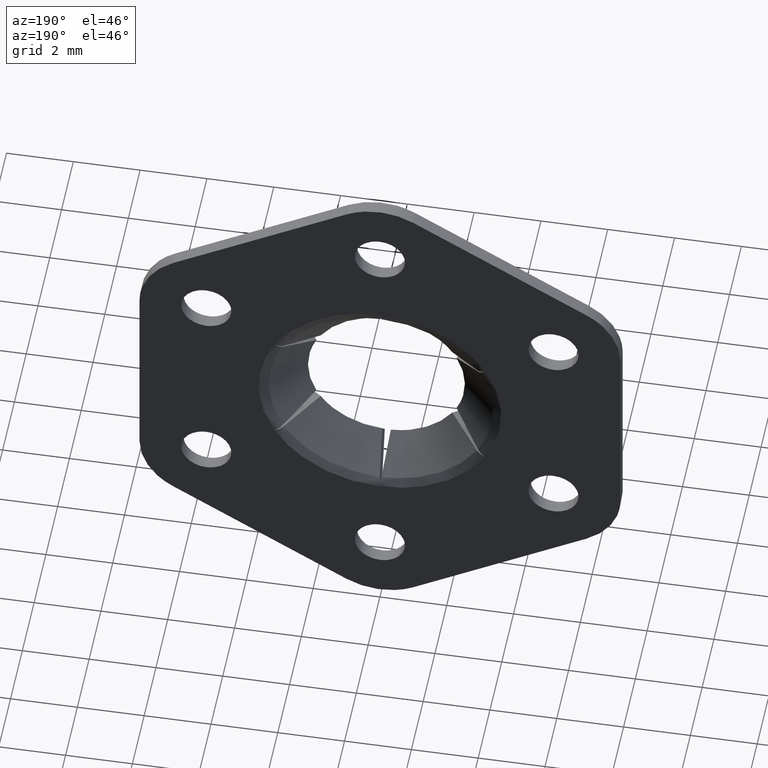
[diagram: clean part render]
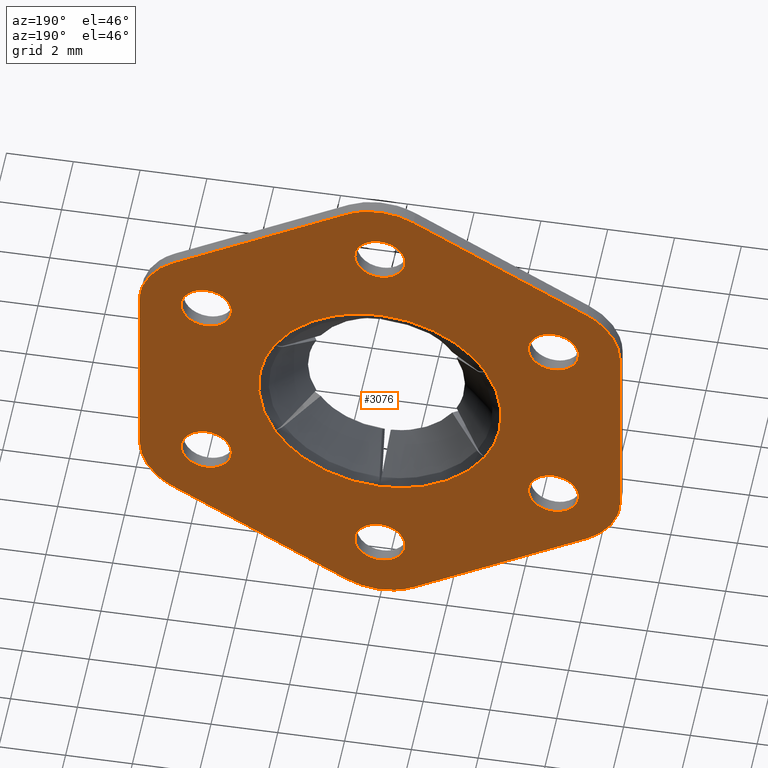
[diagram: same view with one face highlighted and labeled with its STEP entity id]
A machine part, auxiliary view. The second image highlights one B-rep face of the part: STEP entity #3076.
In plain terms, the highlighted face is a freeform B-spline surface patch.
Its self-contained STEP definition (entity closure, byte-faithful):
#23=CARTESIAN_POINT('',(5.946152422706778,0.0,3.000000184233894));
#24=VERTEX_POINT('',#23);
#25=CARTESIAN_POINT('',(5.749110466918721,5.160690E-013,3.506692678224320));
#26=VERTEX_POINT('',#25);
#27=CARTESIAN_POINT('',(5.946152422706778,0.0,3.000000184233894));
#28=CARTESIAN_POINT('',(5.946184937476048,7.378337E-014,3.072442990569414));
#29=CARTESIAN_POINT('',(5.930916651273621,1.800028E-013,3.176732478894167));
#30=CARTESIAN_POINT('',(5.866589797695497,3.575634E-013,3.351067039501909));
#31=CARTESIAN_POINT('',(5.803968080341062,4.551761E-013,3.446906151448388));
#32=CARTESIAN_POINT('',(5.749110466918721,5.160690E-013,3.506692678224320));
#33=B_SPLINE_CURVE_WITH_KNOTS('',3,(#27,#28,#29,#30,#31,#32),.UNSPECIFIED.,.F.,.U.,(4,1,1,4),(5.068699E-009,0.217315538291220,0.312931662552563,0.556326633973435),.UNSPECIFIED.);
#34=EDGE_CURVE('',#24,#26,#33,.T.);
#36=CARTESIAN_POINT('',(5.196152422706800,0.0,2.250000000000000));
#37=VERTEX_POINT('',#36);
#38=CARTESIAN_POINT('',(5.196152422706800,0.0,2.250000000000000));
#39=CARTESIAN_POINT('',(5.257512701088277,0.0,2.249986136258823));
#40=CARTESIAN_POINT('',(5.377157077385261,0.0,2.264763965353576));
#41=CARTESIAN_POINT('',(5.527368480661822,0.0,2.321648528397911));
#42=CARTESIAN_POINT('',(5.663105217703162,0.0,2.406443446935928));
#43=CARTESIAN_POINT('',(5.779524304997474,0.0,2.517271084060655));
#44=CARTESIAN_POINT('',(5.867947849651195,0.0,2.655046133223230));
#45=CARTESIAN_POINT('',(5.930003618018592,0.0,2.815938318747755));
#46=CARTESIAN_POINT('',(5.946181989519886,0.0,2.929432932191865));
#47=CARTESIAN_POINT('',(5.946152422706778,0.0,3.000000184233894));
#48=B_SPLINE_CURVE_WITH_KNOTS('',3,(#38,#39,#40,#41,#42,#43,#44,#45,#46,#47),.UNSPECIFIED.,.F.,.U.,(4,1,1,1,1,1,1,4),(0.000000021674146,0.184078384052444,0.358955458121702,0.478609710542557,0.662682977999263,0.837557633772477,0.966414686754357,1.178104740995845),.UNSPECIFIED.);
#49=EDGE_CURVE('',#37,#24,#48,.T.);
#51=CARTESIAN_POINT('',(4.643194378494880,5.161626E-013,2.493307321775680));
#52=VERTEX_POINT('',#51);
#53=CARTESIAN_POINT('',(4.643194378494880,5.161626E-013,2.493307321775680));
#54=CARTESIAN_POINT('',(4.678195580507922,4.834905E-013,2.455101614962663));
#55=CARTESIAN_POINT('',(4.758590510760346,4.084453E-013,2.383824211127593));
#56=CARTESIAN_POINT('',(4.889266781401227,2.864646E-013,2.310442431983348));
#57=CARTESIAN_POINT('',(5.037474597793182,1.481189E-013,2.261766622327099));
#58=CARTESIAN_POINT('',(5.137860098112325,5.441339E-014,2.249986600527982));
#59=CARTESIAN_POINT('',(5.196152422706800,0.0,2.250000000000000));
#60=B_SPLINE_CURVE_WITH_KNOTS('',3,(#53,#54,#55,#56,#57,#58,#59),.UNSPECIFIED.,.F.,.U.,(4,1,1,1,4),(6.064144E-009,0.155444635827877,0.320601059936478,0.446902636496981,0.621777923410379),.UNSPECIFIED.);
#61=EDGE_CURVE('',#52,#37,#60,.T.);
#134=CARTESIAN_POINT('',(5.196152422706800,0.0,3.750000000000000));
#135=VERTEX_POINT('',#134);
#136=CARTESIAN_POINT('',(5.749110466918721,5.160690E-013,3.506692678224320));
#137=CARTESIAN_POINT('',(5.720670224433375,4.895260E-013,3.537732583283170));
#138=CARTESIAN_POINT('',(5.651379371756149,4.248577E-013,3.601618785898039));
#139=CARTESIAN_POINT('',(5.524255142744260,3.062142E-013,3.680801797982876));
#140=CARTESIAN_POINT('',(5.367782529036679,1.601803E-013,3.736718433350071));
#141=CARTESIAN_POINT('',(5.254445086619060,5.440383E-014,3.750012565443822));
#142=CARTESIAN_POINT('',(5.196152422706800,0.0,3.750000000000000));
#143=B_SPLINE_CURVE_WITH_KNOTS('',3,(#136,#137,#138,#139,#140,#141,#142),.UNSPECIFIED.,.F.,.U.,(4,1,1,1,4),(6.064271E-009,0.126298254635363,0.281743373241774,0.446902636497098,0.621777923410379),.UNSPECIFIED.);
#144=EDGE_CURVE('',#26,#135,#143,.T.);
#183=CARTESIAN_POINT('',(4.446152422706823,0.0,2.999999815766107));
#184=VERTEX_POINT('',#183);
#185=CARTESIAN_POINT('',(4.446152422706823,0.0,2.999999815766107));
#186=CARTESIAN_POINT('',(4.446144805373542,5.313057E-014,2.947844033765445));
#187=CARTESIAN_POINT('',(4.456169685472565,1.505302E-013,2.852231398013865));
#188=CARTESIAN_POINT('',(4.510366550922099,3.319426E-013,2.674147442789831));
#189=CARTESIAN_POINT('',(4.582445133115582,4.487422E-013,2.559490765430094));
#190=CARTESIAN_POINT('',(4.643194378494880,5.161626E-013,2.493307321775680));
#191=B_SPLINE_CURVE_WITH_KNOTS('',3,(#185,#186,#187,#188,#189,#190),.UNSPECIFIED.,.F.,.U.,(4,1,1,4),(5.068143E-009,0.156467114270960,0.286852527127394,0.556326633973444),.UNSPECIFIED.);
#192=EDGE_CURVE('',#184,#52,#191,.T.);
#194=CARTESIAN_POINT('',(5.196152422706800,0.0,3.750000000000000));
#195=CARTESIAN_POINT('',(5.128656355356434,0.0,3.750018199858913));
#196=CARTESIAN_POINT('',(4.996743263281747,0.0,3.732076475234925));
#197=CARTESIAN_POINT('',(4.834250795388133,0.0,3.663600345843067));
#198=CARTESIAN_POINT('',(4.708379430647211,0.0,3.574930056110721));
#199=CARTESIAN_POINT('',(4.604443580825255,0.0,3.469724865972024));
#200=CARTESIAN_POINT('',(4.524356371428204,0.0,3.344954659015762));
#201=CARTESIAN_POINT('',(4.462301034143320,0.0,3.184061785287191));
#202=CARTESIAN_POINT('',(4.446122892455615,0.0,3.070567061633116));
#203=CARTESIAN_POINT('',(4.446152422706823,0.0,2.999999815766107));
#204=B_SPLINE_CURVE_WITH_KNOTS('',3,(#194,#195,#196,#197,#198,#199,#200,#201,#202,#203),.UNSPECIFIED.,.F.,.U.,(4,1,1,1,1,1,1,4),(0.000000021670163,0.202485020717003,0.395769922742663,0.524630130745509,0.662682977997986,0.837557633771717,0.966414686753920,1.178104740995864),.UNSPECIFIED.);
#205=EDGE_CURVE('',#135,#184,#204,.T.);
#228=CARTESIAN_POINT('',(0.749999999999977,0.0,6.000000184233893));
#229=VERTEX_POINT('',#228);
#230=CARTESIAN_POINT('',(0.552958044211920,5.161626E-013,6.506692678224320));
#231=VERTEX_POINT('',#230);
#232=CARTESIAN_POINT('',(0.749999999999977,0.0,6.000000184233893));
#233=CARTESIAN_POINT('',(0.750004440080265,4.722693E-014,6.046360634156927));
#234=CARTESIAN_POINT('',(0.740837376669749,1.475812E-013,6.144873718946134));
#235=CARTESIAN_POINT('',(0.687585999245365,3.296108E-013,6.323563610208330));
#236=CARTESIAN_POINT('',(0.611738728708460,4.509136E-013,6.442640838878737));
#237=CARTESIAN_POINT('',(0.552958044211920,5.161626E-013,6.506692678224320));
#238=B_SPLINE_CURVE_WITH_KNOTS('',3,(#232,#233,#234,#235,#236,#237),.UNSPECIFIED.,.F.,.U.,(4,1,1,4),(5.067829E-009,0.139081660163717,0.295547113058508,0.556326633973440),.UNSPECIFIED.);
#239=EDGE_CURVE('',#229,#231,#238,.T.);
#241=CARTESIAN_POINT('',(0.0,0.0,5.250000000000000));
#242=VERTEX_POINT('',#241);
#243=CARTESIAN_POINT('',(0.0,0.0,5.250000000000000));
#244=CARTESIAN_POINT('',(0.073634310839648,0.0,5.249969528322267));
#245=CARTESIAN_POINT('',(0.190196541582829,0.0,5.267311435908592));
#246=CARTESIAN_POINT('',(0.361751695392838,0.0,5.335916480188113));
#247=CARTESIAN_POINT('',(0.509832943869035,0.0,5.437489105223166));
#248=CARTESIAN_POINT('',(0.643387826729425,0.0,5.596213492509747));
#249=CARTESIAN_POINT('',(0.729943836064530,0.0,5.788321153477878));
#250=CARTESIAN_POINT('',(0.750023459295771,0.0,5.929435046275060));
#251=CARTESIAN_POINT('',(0.749999999999977,0.0,6.000000184233893));
#252=B_SPLINE_CURVE_WITH_KNOTS('',3,(#243,#244,#245,#246,#247,#248,#249,#250,#251),.UNSPECIFIED.,.F.,.U.,(4,1,1,1,1,1,4),(0.000000021670043,0.220892851253244,0.349750026871903,0.552242924751482,0.754722615408671,0.966414686753945,1.178104740995854),.UNSPECIFIED.);
#253=EDGE_CURVE('',#242,#229,#252,.T.);
#255=CARTESIAN_POINT('',(-0.552958044211920,5.160690E-013,5.493307321775680));
#256=VERTEX_POINT('',#255);
#257=CARTESIAN_POINT('',(-0.552958044211920,5.160690E-013,5.493307321775680));
#258=CARTESIAN_POINT('',(-0.517956269270599,4.834022E-013,5.455102882358943));
#259=CARTESIAN_POINT('',(-0.432691206268956,4.038254E-013,5.379498102064953));
#260=CARTESIAN_POINT('',(-0.303744878644939,2.834814E-013,5.309269066267119));
#261=CARTESIAN_POINT('',(-0.155436178956231,1.450667E-013,5.261627589991326));
#262=CARTESIAN_POINT('',(-0.061531884514044,5.742695E-014,5.249982522281780));
#263=CARTESIAN_POINT('',(0.0,0.0,5.250000000000000));
#264=B_SPLINE_CURVE_WITH_KNOTS('',3,(#257,#258,#259,#260,#261,#262,#263),.UNSPECIFIED.,.F.,.U.,(4,1,1,1,4),(6.064075E-009,0.155444635827873,0.340034546887906,0.437186885679846,0.621777923410382),.UNSPECIFIED.);
#265=EDGE_CURVE('',#256,#242,#264,.T.);
#337=CARTESIAN_POINT('',(0.0,0.0,6.750000000000000));
#338=VERTEX_POINT('',#337);
#339=CARTESIAN_POINT('',(0.552958044211920,5.161626E-013,6.506692678224320));
#340=CARTESIAN_POINT('',(0.517956778320681,4.834905E-013,6.544898325402840));
#341=CARTESIAN_POINT('',(0.437561972048355,4.084453E-013,6.616176080319551));
#342=CARTESIAN_POINT('',(0.309726537625359,2.891164E-013,6.687961300716141));
#343=CARTESIAN_POINT('',(0.161914369041483,1.511401E-013,6.737571615385581));
#344=CARTESIAN_POINT('',(0.061531648170282,5.743716E-014,6.750016963058596));
#345=CARTESIAN_POINT('',(0.0,0.0,6.750000000000000));
#346=B_SPLINE_CURVE_WITH_KNOTS('',3,(#339,#340,#341,#342,#343,#344,#345),.UNSPECIFIED.,.F.,.U.,(4,1,1,1,4),(6.064673E-009,0.155444635828366,0.320601059936843,0.437186885680065,0.621777923410376),.UNSPECIFIED.);
#347=EDGE_CURVE('',#231,#338,#346,.T.);
#387=CARTESIAN_POINT('',(-0.749999999999977,0.0,5.999999815766104));
#388=VERTEX_POINT('',#387);
#389=CARTESIAN_POINT('',(-0.749999999999977,0.0,5.999999815766104));
#390=CARTESIAN_POINT('',(-0.750022326718740,6.787929E-014,5.933353822444766));
#391=CARTESIAN_POINT('',(-0.736776423998220,1.682025E-013,5.834853331004778));
#392=CARTESIAN_POINT('',(-0.676518947442134,3.472400E-013,5.659068816320910));
#393=CARTESIAN_POINT('',(-0.611740640986896,4.508305E-013,5.557360451129197));
#394=CARTESIAN_POINT('',(-0.552958044211920,5.160690E-013,5.493307321775680));
#395=B_SPLINE_CURVE_WITH_KNOTS('',3,(#389,#390,#391,#392,#393,#394),.UNSPECIFIED.,.F.,.U.,(4,1,1,4),(5.068826E-009,0.199930291811157,0.295547113058826,0.556326633973439),.UNSPECIFIED.);
#396=EDGE_CURVE('',#388,#256,#395,.T.);
#398=CARTESIAN_POINT('',(0.0,0.0,6.750000000000000));
#399=CARTESIAN_POINT('',(-0.073634270353006,0.0,6.750030359418773));
#400=CARTESIAN_POINT('',(-0.190195158971030,0.0,6.732687377021582));
#401=CARTESIAN_POINT('',(-0.367477944629698,0.0,6.661803715316402));
#402=CARTESIAN_POINT('',(-0.494254952415033,0.0,6.572529133118965));
#403=CARTESIAN_POINT('',(-0.595463667307940,0.0,6.460810474648470));
#404=CARTESIAN_POINT('',(-0.670018658276527,0.0,6.347762909855226));
#405=CARTESIAN_POINT('',(-0.732906592843006,0.0,6.193271298564084));
#406=CARTESIAN_POINT('',(-0.750020403554436,0.0,6.067496330901069));
#407=CARTESIAN_POINT('',(-0.749999999999977,0.0,5.999999815766104));
#408=B_SPLINE_CURVE_WITH_KNOTS('',3,(#398,#399,#400,#401,#402,#403,#404,#405,#406,#407),.UNSPECIFIED.,.F.,.U.,(4,1,1,1,1,1,1,4),(0.000000021671910,0.220892851254695,0.349750026873121,0.570649580663901,0.681088726918184,0.800742436267703,0.975620397032379,1.178104740995859),.UNSPECIFIED.);
#409=EDGE_CURVE('',#338,#388,#408,.T.);
#432=CARTESIAN_POINT('',(-4.446152422706683,0.0,3.000000184233694));
#433=VERTEX_POINT('',#432);
#434=CARTESIAN_POINT('',(-4.643194378494741,5.161158E-013,3.506692678224121));
#435=VERTEX_POINT('',#434);
#436=CARTESIAN_POINT('',(-4.446152422706683,0.0,3.000000184233694));
#437=CARTESIAN_POINT('',(-4.446119240883641,7.378985E-014,3.072442776965319));
#438=CARTESIAN_POINT('',(-4.463508461813035,1.947754E-013,3.191219343759078));
#439=CARTESIAN_POINT('',(-4.533013690791965,3.707756E-013,3.364006092443219));
#440=CARTESIAN_POINT('',(-4.598154803866804,4.660801E-013,3.457570497522159));
#441=CARTESIAN_POINT('',(-4.643194378494741,5.161158E-013,3.506692678224121));
#442=B_SPLINE_CURVE_WITH_KNOTS('',3,(#436,#437,#438,#439,#440,#441),.UNSPECIFIED.,.F.,.U.,(4,1,1,4),(5.067825E-009,0.217315538290759,0.356396347227712,0.556326633973440),.UNSPECIFIED.);
#443=EDGE_CURVE('',#433,#435,#442,.T.);
#445=CARTESIAN_POINT('',(-5.196152422706660,0.0,2.249999999999800));
#446=VERTEX_POINT('',#445);
#447=CARTESIAN_POINT('',(-5.196152422706660,0.0,2.249999999999800));
#448=CARTESIAN_POINT('',(-5.153202486732472,0.0,2.249997292283509));
#449=CARTESIAN_POINT('',(-5.061163756532055,0.0,2.257924746716960));
#450=CARTESIAN_POINT('',(-4.918546998604552,0.0,2.297382549013089));
#451=CARTESIAN_POINT('',(-4.795254234084908,0.0,2.361358776324935));
#452=CARTESIAN_POINT('',(-4.680772614357960,0.0,2.449573005667860));
#453=CARTESIAN_POINT('',(-4.599931676829941,0.0,2.538767912955726));
#454=CARTESIAN_POINT('',(-4.530874427872154,0.0,2.647841609488195));
#455=CARTESIAN_POINT('',(-4.467202067962597,0.0,2.791405837373461));
#456=CARTESIAN_POINT('',(-4.446106963521534,0.0,2.917159038612143));
#457=CARTESIAN_POINT('',(-4.446152422706683,0.0,3.000000184233694));
#458=B_SPLINE_CURVE_WITH_KNOTS('',3,(#447,#448,#449,#450,#451,#452,#453,#454,#455,#456,#457),.UNSPECIFIED.,.F.,.U.,(4,1,1,1,1,1,1,1,4),(0.000000021673025,0.128851020273631,0.276118219029194,0.441790464659356,0.543035477850878,0.708703271175899,0.800742436268070,0.929599489220680,1.178104740995849),.UNSPECIFIED.);
#459=EDGE_CURVE('',#446,#433,#458,.T.);
#461=CARTESIAN_POINT('',(-5.749110466918580,5.161158E-013,2.493307321775480));
#462=VERTEX_POINT('',#461);
#463=CARTESIAN_POINT('',(-5.749110466918580,5.161158E-013,2.493307321775480));
#464=CARTESIAN_POINT('',(-5.714110576094429,4.834479E-013,2.455099929767541));
#465=CARTESIAN_POINT('',(-5.643454537943115,4.174995E-013,2.392469207591926));
#466=CARTESIAN_POINT('',(-5.523420715219127,3.054632E-013,2.320911199176191));
#467=CARTESIAN_POINT('',(-5.377492176755703,1.692575E-013,2.265525845148836));
#468=CARTESIAN_POINT('',(-5.264161778021996,6.347806E-014,2.249977524987490));
#469=CARTESIAN_POINT('',(-5.196152422706660,0.0,2.249999999999800));
#470=B_SPLINE_CURVE_WITH_KNOTS('',3,(#463,#464,#465,#466,#467,#468,#469),.UNSPECIFIED.,.F.,.U.,(4,1,1,1,4),(6.063841E-009,0.155444635827810,0.281743373241581,0.417756249281401,0.621777923410378),.UNSPECIFIED.);
#471=EDGE_CURVE('',#462,#446,#470,.T.);
#545=CARTESIAN_POINT('',(-5.196152422706660,0.0,3.749999999999800));
#546=VERTEX_POINT('',#545);
#547=CARTESIAN_POINT('',(-4.643194378494741,5.161158E-013,3.506692678224121));
#548=CARTESIAN_POINT('',(-4.695678372235781,4.671287E-013,3.564025326599080));
#549=CARTESIAN_POINT('',(-4.798185703980133,3.714512E-013,3.645749506637632));
#550=CARTESIAN_POINT('',(-4.988916063244159,1.934287E-013,3.729676441311945));
#551=CARTESIAN_POINT('',(-5.118425651280072,7.254803E-014,3.750039180125378));
#552=CARTESIAN_POINT('',(-5.196152422706660,0.0,3.749999999999800));
#553=B_SPLINE_CURVE_WITH_KNOTS('',3,(#547,#548,#549,#550,#551,#552),.UNSPECIFIED.,.F.,.U.,(4,1,1,4),(6.064171E-009,0.233168465296561,0.388609771764522,0.621777923410379),.UNSPECIFIED.);
#554=EDGE_CURVE('',#435,#546,#553,.T.);
#595=CARTESIAN_POINT('',(-5.946152422706638,0.0,2.999999815765907));
#596=VERTEX_POINT('',#595);
#597=CARTESIAN_POINT('',(-5.946152422706638,0.0,2.999999815765907));
#598=CARTESIAN_POINT('',(-5.946222289344660,9.150726E-014,2.910163301687659));
#599=CARTESIAN_POINT('',(-5.922444902599501,2.242653E-013,2.779829188076536));
#600=CARTESIAN_POINT('',(-5.843094948146441,3.956868E-013,2.611537452972118));
#601=CARTESIAN_POINT('',(-5.786312392704294,4.747782E-013,2.533890118375807));
#602=CARTESIAN_POINT('',(-5.749110466918580,5.161158E-013,2.493307321775480));
#603=B_SPLINE_CURVE_WITH_KNOTS('',3,(#597,#598,#599,#600,#601,#602),.UNSPECIFIED.,.F.,.U.,(4,1,1,4),(5.068074E-009,0.269474111910679,0.391166604545692,0.556326633973441),.UNSPECIFIED.);
#604=EDGE_CURVE('',#596,#462,#603,.T.);
#606=CARTESIAN_POINT('',(-5.196152422706660,0.0,3.749999999999800));
#607=CARTESIAN_POINT('',(-5.269787499582319,0.0,3.750031860359395));
#608=CARTESIAN_POINT('',(-5.386347691963263,0.0,3.732686497600183));
#609=CARTESIAN_POINT('',(-5.546463181246089,0.0,3.668652241729358));
#610=CARTESIAN_POINT('',(-5.660305255003948,0.0,3.594592164888599));
#611=CARTESIAN_POINT('',(-5.756103132959321,0.0,3.503373463449211));
#612=CARTESIAN_POINT('',(-5.835010873827089,0.0,3.400985571111027));
#613=CARTESIAN_POINT('',(-5.893970695160118,0.0,3.285621165194751));
#614=CARTESIAN_POINT('',(-5.935937694493976,0.0,3.147257416786527));
#615=CARTESIAN_POINT('',(-5.946163375057576,0.0,3.055223763762371));
#616=CARTESIAN_POINT('',(-5.946152422706638,0.0,2.999999815765907));
#617=B_SPLINE_CURVE_WITH_KNOTS('',3,(#606,#607,#608,#609,#610,#611,#612,#613,#614,#615,#616),.UNSPECIFIED.,.F.,.U.,(4,1,1,1,1,1,1,1,4),(0.000000021670100,0.220892851253280,0.349750026871954,0.515420950795664,0.625861753407237,0.745515872840941,0.901986810458137,1.012434507652669,1.178104740995867),.UNSPECIFIED.);
#618=EDGE_CURVE('',#546,#596,#617,.T.);
#641=CARTESIAN_POINT('',(-4.446152422706573,0.0,-2.999999815766507));
#642=VERTEX_POINT('',#641);
#643=CARTESIAN_POINT('',(-4.643194378494631,5.161158E-013,-2.493307321776080));
#644=VERTEX_POINT('',#643);
#645=CARTESIAN_POINT('',(-4.446152422706573,0.0,-2.999999815766507));
#646=CARTESIAN_POINT('',(-4.446122629566310,7.378977E-014,-2.927557305870072));
#647=CARTESIAN_POINT('',(-4.462658548330270,1.888729E-013,-2.814575387727301));
#648=CARTESIAN_POINT('',(-4.530094166039071,3.655037E-013,-2.641169481114378));
#649=CARTESIAN_POINT('',(-4.594228051533466,4.617354E-013,-2.546694826848010));
#650=CARTESIAN_POINT('',(-4.643194378494631,5.161158E-013,-2.493307321776080));
#651=B_SPLINE_CURVE_WITH_KNOTS('',3,(#645,#646,#647,#648,#649,#650),.UNSPECIFIED.,.F.,.U.,(4,1,1,4),(5.067891E-009,0.217315538290873,0.339011100752491,0.556326633973439),.UNSPECIFIED.);
#652=EDGE_CURVE('',#642,#644,#651,.T.);
#654=CARTESIAN_POINT('',(-5.196152422706550,0.0,-3.750000000000400));
#655=VERTEX_POINT('',#654);
#656=CARTESIAN_POINT('',(-5.196152422706550,0.0,-3.750000000000400));
#657=CARTESIAN_POINT('',(-5.150133279194337,0.0,-3.750002494664008));
#658=CARTESIAN_POINT('',(-5.045822035439393,0.0,-3.740376069265375));
#659=CARTESIAN_POINT('',(-4.880597180079255,0.0,-3.689166796847627));
#660=CARTESIAN_POINT('',(-4.738270647353189,0.0,-3.601458440799267));
#661=CARTESIAN_POINT('',(-4.620827423493189,0.0,-3.488247719490665));
#662=CARTESIAN_POINT('',(-4.542628533258201,0.0,-3.377208464247080));
#663=CARTESIAN_POINT('',(-4.468005095975095,0.0,-3.211654205279680));
#664=CARTESIAN_POINT('',(-4.446094510361572,0.0,-3.085912639083322));
#665=CARTESIAN_POINT('',(-4.446152422706573,0.0,-2.999999815766507));
#666=B_SPLINE_CURVE_WITH_KNOTS('',3,(#656,#657,#658,#659,#660,#661,#662,#663,#664,#665),.UNSPECIFIED.,.F.,.U.,(4,1,1,1,1,1,1,4),(0.000000021670698,0.138059241207980,0.312934620137515,0.515420950795848,0.635069712727603,0.800742436267349,0.920394637382129,1.178104740995863),.UNSPECIFIED.);
#667=EDGE_CURVE('',#655,#642,#666,.T.);
#669=CARTESIAN_POINT('',(-5.749110466918470,5.160690E-013,-3.506692678224720));
#670=VERTEX_POINT('',#669);
#671=CARTESIAN_POINT('',(-5.749110466918470,5.160690E-013,-3.506692678224720));
#672=CARTESIAN_POINT('',(-5.714110201754795,4.834036E-013,-3.544899557224796));
#673=CARTESIAN_POINT('',(-5.633712136485600,4.083691E-013,-3.616172021212746));
#674=CARTESIAN_POINT('',(-5.488837835712786,2.731597E-013,-3.697544834919044));
#675=CARTESIAN_POINT('',(-5.338643241117224,1.329849E-013,-3.741533048680825));
#676=CARTESIAN_POINT('',(-5.238251342095357,3.929040E-014,-3.750001408876901));
#677=CARTESIAN_POINT('',(-5.196152422706550,0.0,-3.750000000000400));
#678=B_SPLINE_CURVE_WITH_KNOTS('',3,(#671,#672,#673,#674,#675,#676,#677),.UNSPECIFIED.,.F.,.U.,(4,1,1,1,4),(6.064008E-009,0.155444635827907,0.320601059936611,0.495480009468971,0.621777923410381),.UNSPECIFIED.);
#679=EDGE_CURVE('',#670,#655,#678,.T.);
#752=CARTESIAN_POINT('',(-5.196152422706550,0.0,-2.250000000000400));
#753=VERTEX_POINT('',#752);
#754=CARTESIAN_POINT('',(-4.643194378494631,5.161158E-013,-2.493307321776080));
#755=CARTESIAN_POINT('',(-4.673822592154800,4.875283E-013,-2.459880393867538));
#756=CARTESIAN_POINT('',(-4.753180006661121,4.134582E-013,-2.387646002462057));
#757=CARTESIAN_POINT('',(-4.883088694752587,2.922051E-013,-2.312466684259878));
#758=CARTESIAN_POINT('',(-5.037475136194767,1.481050E-013,-2.261767319111697));
#759=CARTESIAN_POINT('',(-5.137860054213725,5.440849E-014,-2.249986582406136));
#760=CARTESIAN_POINT('',(-5.196152422706550,0.0,-2.250000000000400));
#761=B_SPLINE_CURVE_WITH_KNOTS('',3,(#754,#755,#756,#757,#758,#759,#760),.UNSPECIFIED.,.F.,.U.,(4,1,1,1,4),(6.064092E-009,0.136013942527913,0.320601059936549,0.446902636497028,0.621777923410378),.UNSPECIFIED.);
#762=EDGE_CURVE('',#644,#753,#761,.T.);
#801=CARTESIAN_POINT('',(-5.946152422706528,0.0,-3.000000184234294));
#802=VERTEX_POINT('',#801);
#803=CARTESIAN_POINT('',(-5.946152422706528,0.0,-3.000000184234294));
#804=CARTESIAN_POINT('',(-5.946177988989289,7.378035E-014,-3.072440026702310));
#805=CARTESIAN_POINT('',(-5.927117069568674,2.065682E-013,-3.202815232563914));
#806=CARTESIAN_POINT('',(-5.853434154639337,3.812763E-013,-3.374349076206448));
#807=CARTESIAN_POINT('',(-5.786310425959670,4.747343E-013,-3.466109011596416));
#808=CARTESIAN_POINT('',(-5.749110466918470,5.160690E-013,-3.506692678224720));
#809=B_SPLINE_CURVE_WITH_KNOTS('',3,(#803,#804,#805,#806,#807,#808),.UNSPECIFIED.,.F.,.U.,(4,1,1,4),(5.068592E-009,0.217315538291185,0.391166604545816,0.556326633973436),.UNSPECIFIED.);
#810=EDGE_CURVE('',#802,#670,#809,.T.);
#812=CARTESIAN_POINT('',(-5.196152422706550,0.0,-2.250000000000400));
#813=CARTESIAN_POINT('',(-5.269787459557269,0.0,-2.249968078834043));
#814=CARTESIAN_POINT('',(-5.386347790421666,0.0,-2.267313562035094));
#815=CARTESIAN_POINT('',(-5.546462966538996,0.0,-2.331347780558040));
#816=CARTESIAN_POINT('',(-5.662893443892661,0.0,-2.407092026679725));
#817=CARTESIAN_POINT('',(-5.771476574074756,0.0,-2.511752831947306));
#818=CARTESIAN_POINT('',(-5.851455639673592,0.0,-2.625314201847983));
#819=CARTESIAN_POINT('',(-5.925095652915529,0.0,-2.791409409527458));
#820=CARTESIAN_POINT('',(-5.946200238469422,0.0,-2.917157813799648));
#821=CARTESIAN_POINT('',(-5.946152422706528,0.0,-3.000000184234294));
#822=B_SPLINE_CURVE_WITH_KNOTS('',3,(#812,#813,#814,#815,#816,#817,#818,#819,#820,#821),.UNSPECIFIED.,.F.,.U.,(4,1,1,1,1,1,1,4),(0.000000021673039,0.220892851255633,0.349750026873949,0.515420950797322,0.635069712728849,0.800742436268212,0.929599489220781,1.178104740995846),.UNSPECIFIED.);
#823=EDGE_CURVE('',#753,#802,#822,.T.);
#846=CARTESIAN_POINT('',(0.750000000000319,0.0,-5.999999815766416));
#847=VERTEX_POINT('',#846);
#848=CARTESIAN_POINT('',(0.552958044212261,5.161626E-013,-5.493307321775991));
#849=VERTEX_POINT('',#848);
#850=CARTESIAN_POINT('',(0.750000000000319,0.0,-5.999999815766416));
#851=CARTESIAN_POINT('',(0.750034338186356,7.379673E-014,-5.927557039729523));
#852=CARTESIAN_POINT('',(0.733915036021048,1.859383E-013,-5.817472922897691));
#853=CARTESIAN_POINT('',(0.667518449892321,3.629005E-013,-5.643757525234186));
#854=CARTESIAN_POINT('',(0.603887411690295,4.596034E-013,-5.548828826927903));
#855=CARTESIAN_POINT('',(0.552958044212261,5.161626E-013,-5.493307321775991));
#856=B_SPLINE_CURVE_WITH_KNOTS('',3,(#850,#851,#852,#853,#854,#855),.UNSPECIFIED.,.F.,.U.,(4,1,1,4),(5.068202E-009,0.217315538290955,0.330316781035519,0.556326633973439),.UNSPECIFIED.);
#857=EDGE_CURVE('',#847,#849,#856,.T.);
#859=CARTESIAN_POINT('',(3.410605E-013,0.0,-6.750000000000310));
#860=VERTEX_POINT('',#859);
#861=CARTESIAN_POINT('',(3.410605E-013,0.0,-6.750000000000310));
#862=CARTESIAN_POINT('',(0.061360148237344,0.0,-6.750014809670036));
#863=CARTESIAN_POINT('',(0.181005656221366,0.0,-6.735236023152241));
#864=CARTESIAN_POINT('',(0.319659385354279,0.0,-6.682727507051533));
#865=CARTESIAN_POINT('',(0.441335919130953,0.0,-6.610805597984316));
#866=CARTESIAN_POINT('',(0.547618861128879,0.0,-6.521381375889711));
#867=CARTESIAN_POINT('',(0.656038387422900,0.0,-6.378906079555269));
#868=CARTESIAN_POINT('',(0.731660449736190,0.0,-6.202478989829191));
#869=CARTESIAN_POINT('',(0.750021156174494,0.0,-6.067495684478527));
#870=CARTESIAN_POINT('',(0.750000000000319,0.0,-5.999999815766416));
#871=B_SPLINE_CURVE_WITH_KNOTS('',3,(#861,#862,#863,#864,#865,#866,#867,#868,#869,#870),.UNSPECIFIED.,.F.,.U.,(4,1,1,1,1,1,1,4),(0.000000021672818,0.184078384051346,0.358955458120818,0.441790464659065,0.607455241389417,0.773129012821754,0.975620397032418,1.178104740995857),.UNSPECIFIED.);
#872=EDGE_CURVE('',#860,#847,#871,.T.);
#874=CARTESIAN_POINT('',(-0.552958044211579,5.161626E-013,-6.506692678224630));
#875=VERTEX_POINT('',#874);
#876=CARTESIAN_POINT('',(-0.552958044211579,5.161626E-013,-6.506692678224630));
#877=CARTESIAN_POINT('',(-0.500475537901266,4.671725E-013,-6.564027311628697));
#878=CARTESIAN_POINT('',(-0.405654219945477,3.786608E-013,-6.639617491990809));
#879=CARTESIAN_POINT('',(-0.216931484065020,2.024962E-013,-6.727074672539954));
#880=CARTESIAN_POINT('',(-0.087450128301622,8.163095E-014,-6.750069986002340));
#881=CARTESIAN_POINT('',(3.410605E-013,0.0,-6.750000000000310));
#882=B_SPLINE_CURVE_WITH_KNOTS('',3,(#876,#877,#878,#879,#880,#881),.UNSPECIFIED.,.F.,.U.,(4,1,1,4),(6.064757E-009,0.233168465296910,0.359463243074089,0.621777923410377),.UNSPECIFIED.);
#883=EDGE_CURVE('',#875,#860,#882,.T.);
#956=CARTESIAN_POINT('',(3.410605E-013,0.0,-5.250000000000310));
#957=VERTEX_POINT('',#956);
#958=CARTESIAN_POINT('',(0.552958044212261,5.161626E-013,-5.493307321775991));
#959=CARTESIAN_POINT('',(0.517956236058698,4.834899E-013,-5.455103069321881));
#960=CARTESIAN_POINT('',(0.427820299418565,3.993519E-013,-5.375177616118140));
#961=CARTESIAN_POINT('',(0.242851864026200,2.266918E-013,-5.277492617115121));
#962=CARTESIAN_POINT('',(0.087442481689805,8.162381E-014,-5.249940185485088));
#963=CARTESIAN_POINT('',(3.410605E-013,0.0,-5.250000000000310));
#964=B_SPLINE_CURVE_WITH_KNOTS('',3,(#958,#959,#960,#961,#962,#963),.UNSPECIFIED.,.F.,.U.,(4,1,1,4),(6.064324E-009,0.155444635828096,0.359463243073905,0.621777923410378),.UNSPECIFIED.);
#965=EDGE_CURVE('',#849,#957,#964,.T.);
#1004=CARTESIAN_POINT('',(-0.749999999999636,0.0,-6.000000184234204));
#1005=VERTEX_POINT('',#1004);
#1006=CARTESIAN_POINT('',(-0.749999999999636,0.0,-6.000000184234204));
#1007=CARTESIAN_POINT('',(-0.750048000692450,8.265416E-014,-6.081137877823799));
#1008=CARTESIAN_POINT('',(-0.728152504599087,2.183978E-013,-6.214391045641279));
#1009=CARTESIAN_POINT('',(-0.650608976681399,3.911324E-013,-6.383956435734636));
#1010=CARTESIAN_POINT('',(-0.588199279214658,4.769956E-013,-6.468244274401653));
#1011=CARTESIAN_POINT('',(-0.552958044211579,5.161626E-013,-6.506692678224630));
#1012=B_SPLINE_CURVE_WITH_KNOTS('',3,(#1006,#1007,#1008,#1009,#1010,#1011),.UNSPECIFIED.,.F.,.U.,(4,1,1,4),(5.068160E-009,0.243394976483965,0.399859524769182,0.556326633973436),.UNSPECIFIED.);
#1013=EDGE_CURVE('',#1005,#875,#1012,.T.);
#1015=CARTESIAN_POINT('',(3.410605E-013,0.0,-5.250000000000310));
#1016=CARTESIAN_POINT('',(-0.073634320686990,0.0,-5.249969626179375));
#1017=CARTESIAN_POINT('',(-0.190196423522314,0.0,-5.267310914171737));
#1018=CARTESIAN_POINT('',(-0.358892500745401,0.0,-5.334774230344658));
#1019=CARTESIAN_POINT('',(-0.492093891594519,0.0,-5.424954551689582));
#1020=CARTESIAN_POINT('',(-0.594274203353233,0.0,-5.536337483621840));
#1021=CARTESIAN_POINT('',(-0.670682434570836,0.0,-5.655373745811684));
#1022=CARTESIAN_POINT('',(-0.732116187153671,0.0,-5.803660292460034));
#1023=CARTESIAN_POINT('',(-0.750025303200727,0.0,-5.929435605336934));
#1024=CARTESIAN_POINT('',(-0.749999999999636,0.0,-6.000000184234204));
#1025=B_SPLINE_CURVE_WITH_KNOTS('',3,(#1015,#1016,#1017,#1018,#1019,#1020,#1021,#1022,#1023,#1024),.UNSPECIFIED.,.F.,.U.,(4,1,1,1,1,1,1,4),(0.000000021671098,0.220892851254007,0.349750026872536,0.543035477849876,0.699495159241004,0.800742436267596,0.966414686754060,1.178104740995858),.UNSPECIFIED.);
#1026=EDGE_CURVE('',#957,#1005,#1025,.T.);
#1049=CARTESIAN_POINT('',(5.946152422706928,0.0,-2.999999815766220));
#1050=VERTEX_POINT('',#1049);
#1051=CARTESIAN_POINT('',(5.749110466918870,5.160690E-013,-2.493307321775794));
#1052=VERTEX_POINT('',#1051);
#1053=CARTESIAN_POINT('',(5.946152422706928,0.0,-2.999999815766220));
#1054=CARTESIAN_POINT('',(5.946190171054198,7.673618E-014,-2.924657850535446));
#1055=CARTESIAN_POINT('',(5.930298444581083,1.829516E-013,-2.820372216143311));
#1056=CARTESIAN_POINT('',(5.864987283081289,3.600698E-013,-2.646472108850618));
#1057=CARTESIAN_POINT('',(5.803962937462819,4.551724E-013,-2.553097461000215));
#1058=CARTESIAN_POINT('',(5.749110466918870,5.160690E-013,-2.493307321775794));
#1059=B_SPLINE_CURVE_WITH_KNOTS('',3,(#1053,#1054,#1055,#1056,#1057,#1058),.UNSPECIFIED.,.F.,.U.,(4,1,1,4),(5.067997E-009,0.226009858001149,0.312931662552375,0.556326633973436),.UNSPECIFIED.);
#1060=EDGE_CURVE('',#1050,#1052,#1059,.T.);
#1062=CARTESIAN_POINT('',(5.196152422706950,0.0,-3.750000000000115));
#1063=VERTEX_POINT('',#1062);
#1064=CARTESIAN_POINT('',(5.196152422706950,0.0,-3.750000000000115));
#1065=CARTESIAN_POINT('',(5.257512888964828,0.0,-3.750015994302363));
#1066=CARTESIAN_POINT('',(5.361815857193982,0.0,-3.737123827115723));
#1067=CARTESIAN_POINT('',(5.510320590911138,0.0,-3.686037062938430));
#1068=CARTESIAN_POINT('',(5.625327271362201,0.0,-3.619950024843502));
#1069=CARTESIAN_POINT('',(5.724184562681534,0.0,-3.536759246887081));
#1070=CARTESIAN_POINT('',(5.817327135223687,0.0,-3.430135944524905));
#1071=CARTESIAN_POINT('',(5.895760989111353,0.0,-3.289693232877880));
#1072=CARTESIAN_POINT('',(5.938553344344596,0.0,-3.134990156493278));
#1073=CARTESIAN_POINT('',(5.946153780478992,0.0,-3.039882981776849));
#1074=CARTESIAN_POINT('',(5.946152422706928,0.0,-2.999999815766220));
#1075=B_SPLINE_CURVE_WITH_KNOTS('',3,(#1064,#1065,#1066,#1067,#1068,#1069,#1070,#1071,#1072,#1073,#1074),.UNSPECIFIED.,.F.,.U.,(4,1,1,1,1,1,1,1,4),(0.000000021669244,0.184078384048672,0.312934620136920,0.469402499680215,0.579854890386111,0.699495159240580,0.892782634521357,1.058453851919129,1.178104740995868),.UNSPECIFIED.);
#1076=EDGE_CURVE('',#1063,#1050,#1075,.T.);
#1078=CARTESIAN_POINT('',(4.643194378495030,5.161149E-013,-3.506692678224435));
#1079=VERTEX_POINT('',#1078);
#1080=CARTESIAN_POINT('',(4.643194378495030,5.161149E-013,-3.506692678224435));
#1081=CARTESIAN_POINT('',(4.682567528848116,4.793652E-013,-3.549677900865468));
#1082=CARTESIAN_POINT('',(4.773871672287257,3.941445E-013,-3.628523845690111));
#1083=CARTESIAN_POINT('',(4.959783139634254,2.206202E-013,-3.723645162321709));
#1084=CARTESIAN_POINT('',(5.108707072969430,8.161894E-014,-3.750064304093950));
#1085=CARTESIAN_POINT('',(5.196152422706950,0.0,-3.750000000000115));
#1086=B_SPLINE_CURVE_WITH_KNOTS('',3,(#1080,#1081,#1082,#1083,#1084,#1085),.UNSPECIFIED.,.F.,.U.,(4,1,1,4),(6.064310E-009,0.174875550126344,0.359463243073853,0.621777923410381),.UNSPECIFIED.);
#1087=EDGE_CURVE('',#1079,#1063,#1086,.T.);
#1161=CARTESIAN_POINT('',(5.196152422706950,0.0,-2.250000000000115));
#1162=VERTEX_POINT('',#1161);
#1163=CARTESIAN_POINT('',(5.749110466918870,5.160690E-013,-2.493307321775794));
#1164=CARTESIAN_POINT('',(5.705367123256527,4.752438E-013,-2.445539913509093));
#1165=CARTESIAN_POINT('',(5.622888528227897,3.982676E-013,-2.376185351427476));
#1166=CARTESIAN_POINT('',(5.490684733643735,2.748834E-013,-2.306391192227199));
#1167=CARTESIAN_POINT('',(5.354830058842632,1.480919E-013,-2.261766155176643));
#1168=CARTESIAN_POINT('',(5.254444973438805,5.440372E-014,-2.249986776642667));
#1169=CARTESIAN_POINT('',(5.196152422706950,0.0,-2.250000000000115));
#1170=B_SPLINE_CURVE_WITH_KNOTS('',3,(#1163,#1164,#1165,#1166,#1167,#1168,#1169),.UNSPECIFIED.,.F.,.U.,(4,1,1,1,4),(6.064162E-009,0.194305832324110,0.320601059936518,0.446902636497007,0.621777923410379),.UNSPECIFIED.);
#1171=EDGE_CURVE('',#1052,#1162,#1170,.T.);
#1211=CARTESIAN_POINT('',(4.446152422706973,0.0,-3.000000184234009));
#1212=VERTEX_POINT('',#1211);
#1213=CARTESIAN_POINT('',(4.446152422706973,0.0,-3.000000184234009));
#1214=CARTESIAN_POINT('',(4.446082572334530,9.150506E-014,-3.089834689988151));
#1215=CARTESIAN_POINT('',(4.472499062014987,2.390222E-013,-3.234658736746802));
#1216=CARTESIAN_POINT('',(4.556923310401813,4.084953E-013,-3.401037824165385));
#1217=CARTESIAN_POINT('',(4.615787706644936,4.856523E-013,-3.476786200988424));
#1218=CARTESIAN_POINT('',(4.643194378495030,5.161149E-013,-3.506692678224435));
#1219=B_SPLINE_CURVE_WITH_KNOTS('',3,(#1213,#1214,#1215,#1216,#1217,#1218),.UNSPECIFIED.,.F.,.U.,(4,1,1,4),(5.067938E-009,0.269474111910610,0.434630428723565,0.556326633973439),.UNSPECIFIED.);
#1220=EDGE_CURVE('',#1212,#1079,#1219,.T.);
#1222=CARTESIAN_POINT('',(5.196152422706950,0.0,-2.250000000000115));
#1223=CARTESIAN_POINT('',(5.150133244565708,0.0,-2.249996747925319));
#1224=CARTESIAN_POINT('',(5.045820607711290,0.0,-2.259622887142007));
#1225=CARTESIAN_POINT('',(4.910108737915924,0.0,-2.301699039712548));
#1226=CARTESIAN_POINT('',(4.782595689648829,0.0,-2.369866470301121));
#1227=CARTESIAN_POINT('',(4.673231140652665,0.0,-2.455208580640214));
#1228=CARTESIAN_POINT('',(4.563194484271412,0.0,-2.584348319974042));
#1229=CARTESIAN_POINT('',(4.471312467971012,0.0,-2.766856945547741));
#1230=CARTESIAN_POINT('',(4.446103621564497,0.0,-2.917161813528829));
#1231=CARTESIAN_POINT('',(4.446152422706973,0.0,-3.000000184234009));
#1232=B_SPLINE_CURVE_WITH_KNOTS('',3,(#1222,#1223,#1224,#1225,#1226,#1227,#1228,#1229,#1230,#1231),.UNSPECIFIED.,.F.,.U.,(4,1,1,1,1,1,1,4),(0.000000021670123,0.138059241207593,0.312934620137297,0.423383074038252,0.570649580663171,0.727108639114571,0.929599489220211,1.178104740995865),.UNSPECIFIED.);
#1233=EDGE_CURVE('',#1162,#1212,#1232,.T.);
#1270=CARTESIAN_POINT('',(-3.146134076949720,0.0,1.816421356233205));
#1271=VERTEX_POINT('',#1270);
#1363=CARTESIAN_POINT('',(-3.146134076949720,0.0,-1.816421356233205));
#1364=VERTEX_POINT('',#1363);
#1455=CARTESIAN_POINT('',(2.842171E-013,0.0,-3.632842712467095));
#1456=VERTEX_POINT('',#1455);
#1548=CARTESIAN_POINT('',(3.146134076949720,0.0,-1.816421356233095));
#1549=VERTEX_POINT('',#1548);
#1640=CARTESIAN_POINT('',(3.146134076949664,0.0,1.816421356233095));
#1641=VERTEX_POINT('',#1640);
#2243=CARTESIAN_POINT('',(3.146134076949720,0.0,-1.816421356233095));
#2244=CARTESIAN_POINT('',(3.260091750536399,0.0,-1.619099735043981));
#2245=CARTESIAN_POINT('',(3.417508912091540,0.0,-1.275291719031313));
#2246=CARTESIAN_POINT('',(3.570643720815128,0.0,-0.730641894818610));
#2247=CARTESIAN_POINT('',(3.634830118570075,0.0,-0.258006863658728));
#2248=CARTESIAN_POINT('',(3.634842779883384,0.0,0.287778267341032));
#2249=CARTESIAN_POINT('',(3.556028020703820,0.0,0.819111179187402));
#2250=CARTESIAN_POINT('',(3.382799344015044,0.0,1.358199194455126));
#2251=CARTESIAN_POINT('',(3.230348860437891,0.0,1.670568512809811));
#2252=CARTESIAN_POINT('',(3.146134076949664,0.0,1.816421356233095));
#2253=B_SPLINE_CURVE_WITH_KNOTS('',3,(#2243,#2244,#2245,#2246,#2247,#2248,#2249,#2250,#2251,#2252),.UNSPECIFIED.,.F.,.U.,(4,1,1,1,1,1,1,4),(3.270292E-009,0.683586976853535,1.129406609105622,1.694111156475735,2.110203448563945,2.764071869467769,3.299054703761947,3.804314601769321),.UNSPECIFIED.);
#2254=EDGE_CURVE('',#1549,#1641,#2253,.T.);
#2279=CARTESIAN_POINT('',(2.842171E-013,0.0,-3.632842712467095));
#2280=CARTESIAN_POINT('',(0.208048326694383,0.0,-3.632858373625888));
#2281=CARTESIAN_POINT('',(0.554788960702331,0.0,-3.602973794169393));
#2282=CARTESIAN_POINT('',(1.008999453640137,0.0,-3.497057917267858));
#2283=CARTESIAN_POINT('',(1.402379069226638,0.0,-3.359922861559836));
#2284=CARTESIAN_POINT('',(1.867279476125491,0.0,-3.135405508740413));
#2285=CARTESIAN_POINT('',(2.298632311635235,0.0,-2.831601034341493));
#2286=CARTESIAN_POINT('',(2.763856567963844,0.0,-2.385023712876618));
#2287=CARTESIAN_POINT('',(3.007484006978740,0.0,-2.056689553088797));
#2288=CARTESIAN_POINT('',(3.146134076949720,0.0,-1.816421356233095));
#2289=B_SPLINE_CURVE_WITH_KNOTS('',3,(#2279,#2280,#2281,#2282,#2283,#2284,#2285,#2286,#2287,#2288),.UNSPECIFIED.,.F.,.U.,(4,1,1,1,1,1,1,4),(3.268763E-009,0.624143605669495,1.040242735571054,1.396897404511840,1.872438140003377,2.585744276103291,2.972121446446974,3.804314601770362),.UNSPECIFIED.);
#2290=EDGE_CURVE('',#1456,#1549,#2289,.T.);
#2315=CARTESIAN_POINT('',(-3.146134076949720,0.0,-1.816421356233205));
#2316=CARTESIAN_POINT('',(-3.061926902637481,0.0,-1.962277630488881));
#2317=CARTESIAN_POINT('',(-2.839890529380225,0.0,-2.291676047859624));
#2318=CARTESIAN_POINT('',(-2.491463606446757,0.0,-2.660661098781393));
#2319=CARTESIAN_POINT('',(-2.104313631762703,0.0,-2.970480959707915));
#2320=CARTESIAN_POINT('',(-1.710091077141257,0.0,-3.220143247524165));
#2321=CARTESIAN_POINT('',(-1.246629240221563,0.0,-3.425573535246359));
#2322=CARTESIAN_POINT('',(-0.663755006323481,0.0,-3.589451444145209));
#2323=CARTESIAN_POINT('',(-0.257587094070413,0.0,-3.632883607984903));
#2324=CARTESIAN_POINT('',(2.842171E-013,0.0,-3.632842712467095));
#2325=B_SPLINE_CURVE_WITH_KNOTS('',3,(#2315,#2316,#2317,#2318,#2319,#2320,#2321,#2322,#2323,#2324),.UNSPECIFIED.,.F.,.U.,(4,1,1,1,1,1,1,4),(3.269486E-009,0.505259901277129,1.188848505796438,1.515784648815682,1.991316674798450,2.585744276103678,3.031563908356056,3.804314601770798),.UNSPECIFIED.);
#2326=EDGE_CURVE('',#1364,#1456,#2325,.T.);
#2351=CARTESIAN_POINT('',(-3.146134076949720,0.0,1.816421356233205));
#2352=CARTESIAN_POINT('',(-3.284884628771961,0.0,1.576213180639018));
#2353=CARTESIAN_POINT('',(-3.471218120080672,0.0,1.146157461633568));
#2354=CARTESIAN_POINT('',(-3.601586994491544,0.0,0.554184049016239));
#2355=CARTESIAN_POINT('',(-3.642947985590400,0.0,0.049787575226699));
#2356=CARTESIAN_POINT('',(-3.621012863574344,0.0,-0.396699019816222));
#2357=CARTESIAN_POINT('',(-3.546352603569183,0.0,-0.816719962260734));
#2358=CARTESIAN_POINT('',(-3.412901507268084,0.0,-1.284071529716220));
#2359=CARTESIAN_POINT('',(-3.265050365218895,0.0,-1.610522069603302));
#2360=CARTESIAN_POINT('',(-3.146134076949720,0.0,-1.816421356233205));
#2361=B_SPLINE_CURVE_WITH_KNOTS('',3,(#2351,#2352,#2353,#2354,#2355,#2356,#2357,#2358,#2359,#2360),.UNSPECIFIED.,.F.,.U.,(4,1,1,1,1,1,1,4),(3.270371E-009,0.832193158593253,1.396897404512540,1.812997930241591,2.347973749266467,2.734350457842837,3.091005805046328,3.804314601769520),.UNSPECIFIED.);
#2362=EDGE_CURVE('',#1271,#1364,#2361,.T.);
#2387=CARTESIAN_POINT('',(2.842171E-013,0.0,3.632842712467095));
#2388=VERTEX_POINT('',#2387);
#2389=CARTESIAN_POINT('',(2.842171E-013,0.0,3.632842712467095));
#2390=CARTESIAN_POINT('',(-0.227863611641112,0.0,3.632870098295111));
#2391=CARTESIAN_POINT('',(-0.604321642704062,0.0,3.597301407336126));
#2392=CARTESIAN_POINT('',(-1.056378121800170,0.0,3.482086624136431));
#2393=CARTESIAN_POINT('',(-1.503774479551479,0.0,3.319969184950966));
#2394=CARTESIAN_POINT('',(-1.962279535804837,0.0,3.079689345437659));
#2395=CARTESIAN_POINT('',(-2.418073704368425,0.0,2.726943106052819));
#2396=CARTESIAN_POINT('',(-2.813190487136348,0.0,2.322004449010212));
#2397=CARTESIAN_POINT('',(-3.032226912295581,0.0,2.013772108594047));
#2398=CARTESIAN_POINT('',(-3.146134076949720,0.0,1.816421356233205));
#2399=B_SPLINE_CURVE_WITH_KNOTS('',3,(#2389,#2390,#2391,#2392,#2393,#2394,#2395,#2396,#2397,#2398),.UNSPECIFIED.,.F.,.U.,(4,1,1,1,1,1,1,4),(3.269199E-009,0.683586976852911,1.129406609105312,1.396897404512331,2.110203448564303,2.674907995934767,3.120727628187119,3.804314601770793),.UNSPECIFIED.);
#2400=EDGE_CURVE('',#2388,#1271,#2399,.T.);
#2429=CARTESIAN_POINT('',(-1.000000000000146,0.0,7.732050807569170));
#2430=VERTEX_POINT('',#2429);
#2431=CARTESIAN_POINT('',(0.999999999999867,0.0,7.732050807569170));
#2432=VERTEX_POINT('',#2431);
#2433=CARTESIAN_POINT('',(-1.000000000000146,0.0,7.732050807569170));
#2434=CARTESIAN_POINT('',(-0.905535209132411,0.0,7.786599698559056));
#2435=CARTESIAN_POINT('',(-0.732384180576225,0.0,7.868478682906147));
#2436=CARTESIAN_POINT('',(-0.476475930075422,0.0,7.947246906592038));
#2437=CARTESIAN_POINT('',(-0.175484382938830,0.0,8.002043149380580));
#2438=CARTESIAN_POINT('',(0.137272530747570,0.0,8.005875357437173));
#2439=CARTESIAN_POINT('',(0.477024812706202,0.0,7.949764931879051));
#2440=CARTESIAN_POINT('',(0.747948651759690,0.0,7.862716674694890));
#2441=CARTESIAN_POINT('',(0.924426892626274,0.0,7.775685301053985));
#2442=CARTESIAN_POINT('',(0.999999999999867,0.0,7.732050807569170));
#2443=B_SPLINE_CURVE_WITH_KNOTS('',3,(#2433,#2434,#2435,#2436,#2437,#2438,#2439,#2440,#2441,#2442),.UNSPECIFIED.,.F.,.U.,(4,1,1,1,1,1,1,4),(6.414398E-009,0.327249435878488,0.572687896510462,0.801763808356188,1.243549601305142,1.505350080689510,1.832603381119056,2.094400943214492),.UNSPECIFIED.);
#2444=EDGE_CURVE('',#2430,#2432,#2443,.T.);
#2489=CARTESIAN_POINT('',(6.196152422706440,0.0,4.732050807569270));
#2490=VERTEX_POINT('',#2489);
#2491=CARTESIAN_POINT('',(7.196152422706460,0.0,3.000000000000340));
#2492=VERTEX_POINT('',#2491);
#2493=CARTESIAN_POINT('',(6.196152422706440,0.0,4.732050807569270));
#2494=CARTESIAN_POINT('',(6.276451123098100,0.0,4.685692375599927));
#2495=CARTESIAN_POINT('',(6.448727249841108,0.0,4.569564523998364));
#2496=CARTESIAN_POINT('',(6.669316730934682,0.0,4.364643646285344));
#2497=CARTESIAN_POINT('',(6.868817211261544,0.0,4.111157700567027));
#2498=CARTESIAN_POINT('',(7.008108695617571,0.0,3.862902999505419));
#2499=CARTESIAN_POINT('',(7.120183853750213,0.0,3.572369846455711));
#2500=CARTESIAN_POINT('',(7.182574960050708,0.0,3.294525166503566));
#2501=CARTESIAN_POINT('',(7.196153894861657,0.0,3.087265336135236));
#2502=CARTESIAN_POINT('',(7.196152422706460,0.0,3.000000000000340));
#2503=B_SPLINE_CURVE_WITH_KNOTS('',3,(#2493,#2494,#2495,#2496,#2497,#2498,#2499,#2500,#2501,#2502),.UNSPECIFIED.,.F.,.U.,(4,1,1,1,1,1,1,4),(6.412528E-009,0.278161497942291,0.621775671074497,0.899938504328220,1.243549601304255,1.472625381861051,1.832603381118843,2.094400943214557),.UNSPECIFIED.);
#2504=EDGE_CURVE('',#2490,#2492,#2503,.T.);
#2549=CARTESIAN_POINT('',(7.196152422706410,0.0,-2.999999999999765));
#2550=VERTEX_POINT('',#2549);
#2551=CARTESIAN_POINT('',(6.196152422706390,0.0,-4.732050807568649));
#2552=VERTEX_POINT('',#2551);
#2553=CARTESIAN_POINT('',(7.196152422706410,0.0,-2.999999999999765));
#2554=CARTESIAN_POINT('',(7.196171630987952,0.0,-3.136354887204397));
#2555=CARTESIAN_POINT('',(7.168713804529312,0.0,-3.403600597360539));
#2556=CARTESIAN_POINT('',(7.046205571363586,0.0,-3.795956610786099));
#2557=CARTESIAN_POINT('',(6.859682284439576,0.0,-4.131562653127937));
#2558=CARTESIAN_POINT('',(6.582686546118955,0.0,-4.463495141101443));
#2559=CARTESIAN_POINT('',(6.352067644254654,0.0,-4.642112049461586));
#2560=CARTESIAN_POINT('',(6.196152422706390,0.0,-4.732050807568649));
#2561=B_SPLINE_CURVE_WITH_KNOTS('',3,(#2553,#2554,#2555,#2556,#2557,#2558,#2559,#2560),.UNSPECIFIED.,.F.,.U.,(4,1,1,1,1,4),(6.413048E-009,0.409061656458277,0.801763808355185,1.227185480165843,1.554438077451671,2.094400943214517),.UNSPECIFIED.);
#2562=EDGE_CURVE('',#2550,#2552,#2561,.T.);
#2607=CARTESIAN_POINT('',(0.999999999999879,0.0,-7.732050807568570));
#2608=VERTEX_POINT('',#2607);
#2609=CARTESIAN_POINT('',(-1.000000000000162,0.0,-7.732050807568561));
#2610=VERTEX_POINT('',#2609);
#2611=CARTESIAN_POINT('',(0.999999999999879,0.0,-7.732050807568570));
#2612=CARTESIAN_POINT('',(0.896090356042623,0.0,-7.792057209852929));
#2613=CARTESIAN_POINT('',(0.702271985618791,0.0,-7.881768814480342));
#2614=CARTESIAN_POINT('',(0.370684831492095,0.0,-7.975005512521084));
#2615=CARTESIAN_POINT('',(-0.010782583359419,0.0,-8.015752394153319));
#2616=CARTESIAN_POINT('',(-0.409299992068206,0.0,-7.971562800584347));
#2617=CARTESIAN_POINT('',(-0.747948100404600,0.0,-7.862711719439394));
#2618=CARTESIAN_POINT('',(-0.924426618437548,0.0,-7.775684621767500));
#2619=CARTESIAN_POINT('',(-1.000000000000162,0.0,-7.732050807568561));
#2620=B_SPLINE_CURVE_WITH_KNOTS('',3,(#2611,#2612,#2613,#2614,#2615,#2616,#2617,#2618,#2619),.UNSPECIFIED.,.F.,.U.,(4,1,1,1,1,1,4),(6.412637E-009,0.359973630189856,0.638138917069299,1.030842302178801,1.505350080689040,1.832603381118830,2.094400943214545),.UNSPECIFIED.);
#2621=EDGE_CURVE('',#2608,#2610,#2620,.T.);
#2666=CARTESIAN_POINT('',(-6.196152422706800,0.0,-4.732050807568500));
#2667=VERTEX_POINT('',#2666);
#2668=CARTESIAN_POINT('',(-7.196152422706800,0.0,-2.999999999999625));
#2669=VERTEX_POINT('',#2668);
#2670=CARTESIAN_POINT('',(-6.196152422706800,0.0,-4.732050807568500));
#2671=CARTESIAN_POINT('',(-6.328423134859603,0.0,-4.655714842633465));
#2672=CARTESIAN_POINT('',(-6.575343153985596,0.0,-4.472543726519008));
#2673=CARTESIAN_POINT('',(-6.834625325570848,0.0,-4.166950594986145));
#2674=CARTESIAN_POINT('',(-7.016463382265756,0.0,-3.848950979482759));
#2675=CARTESIAN_POINT('',(-7.155370163516237,0.0,-3.479937946406413));
#2676=CARTESIAN_POINT('',(-7.196216877806479,0.0,-3.179994061295958));
#2677=CARTESIAN_POINT('',(-7.196152422706800,0.0,-2.999999999999625));
#2678=B_SPLINE_CURVE_WITH_KNOTS('',3,(#2670,#2671,#2672,#2673,#2674,#2675,#2676,#2677),.UNSPECIFIED.,.F.,.U.,(4,1,1,1,1,4),(6.412778E-009,0.458149664727088,0.916303579847124,1.194462296369141,1.554438077451783,2.094400943214498),.UNSPECIFIED.);
#2679=EDGE_CURVE('',#2667,#2669,#2678,.T.);
#2724=CARTESIAN_POINT('',(-7.196152422706860,0.0,3.000000000000210));
#2725=VERTEX_POINT('',#2724);
#2726=CARTESIAN_POINT('',(-6.196152422706851,0.0,4.732050807569130));
#2727=VERTEX_POINT('',#2726);
#2728=CARTESIAN_POINT('',(-7.196152422706860,0.0,3.000000000000210));
#2729=CARTESIAN_POINT('',(-7.196172505919767,0.0,3.141808952368450));
#2730=CARTESIAN_POINT('',(-7.165288244903131,0.0,3.430874129309760));
#2731=CARTESIAN_POINT('',(-7.032858902739835,0.0,3.826337799725886));
#2732=CARTESIAN_POINT('',(-6.842496925635852,0.0,4.152914181257712));
#2733=CARTESIAN_POINT('',(-6.578339996627864,0.0,4.466871492223167));
#2734=CARTESIAN_POINT('',(-6.352063284522244,0.0,4.642106487184734));
#2735=CARTESIAN_POINT('',(-6.196152422706851,0.0,4.732050807569130));
#2736=B_SPLINE_CURVE_WITH_KNOTS('',3,(#2728,#2729,#2730,#2731,#2732,#2733,#2734,#2735),.UNSPECIFIED.,.F.,.U.,(4,1,1,1,1,4),(6.415316E-009,0.425425077611323,0.867215548521254,1.243549601305488,1.554438077452365,2.094400943214524),.UNSPECIFIED.);
#2737=EDGE_CURVE('',#2725,#2727,#2736,.T.);
#2779=CARTESIAN_POINT('',(7.196152422706460,0.0,3.000000000000340));
#2780=CARTESIAN_POINT('',(7.196152422706410,0.0,-2.999999999999765));
#2781=QUASI_UNIFORM_CURVE('',1,(#2779,#2780),.UNSPECIFIED.,.F.,.U.);
#2782=EDGE_CURVE('',#2492,#2550,#2781,.T.);
#2799=CARTESIAN_POINT('',(6.196152422706390,0.0,-4.732050807568649));
#2800=CARTESIAN_POINT('',(0.999999999999879,0.0,-7.732050807568570));
#2801=QUASI_UNIFORM_CURVE('',1,(#2799,#2800),.UNSPECIFIED.,.F.,.U.);
#2802=EDGE_CURVE('',#2552,#2608,#2801,.T.);
#2819=CARTESIAN_POINT('',(-1.000000000000162,0.0,-7.732050807568561));
#2820=CARTESIAN_POINT('',(-6.196152422706800,0.0,-4.732050807568500));
#2821=QUASI_UNIFORM_CURVE('',1,(#2819,#2820),.UNSPECIFIED.,.F.,.U.);
#2822=EDGE_CURVE('',#2610,#2667,#2821,.T.);
#2839=CARTESIAN_POINT('',(-7.196152422706800,0.0,-2.999999999999625));
#2840=CARTESIAN_POINT('',(-7.196152422706860,0.0,3.000000000000210));
#2841=QUASI_UNIFORM_CURVE('',1,(#2839,#2840),.UNSPECIFIED.,.F.,.U.);
#2842=EDGE_CURVE('',#2669,#2725,#2841,.T.);
#2853=CARTESIAN_POINT('',(-6.196152422706851,0.0,4.732050807569130));
#2854=CARTESIAN_POINT('',(-1.000000000000146,0.0,7.732050807569170));
#2855=QUASI_UNIFORM_CURVE('',1,(#2853,#2854),.UNSPECIFIED.,.F.,.U.);
#2856=EDGE_CURVE('',#2727,#2430,#2855,.T.);
#2879=CARTESIAN_POINT('',(0.999999999999867,0.0,7.732050807569170));
#2880=CARTESIAN_POINT('',(6.196152422706440,0.0,4.732050807569270));
#2881=QUASI_UNIFORM_CURVE('',1,(#2879,#2880),.UNSPECIFIED.,.F.,.U.);
#2882=EDGE_CURVE('',#2432,#2490,#2881,.T.);
#2989=CARTESIAN_POINT('',(-7.915048021840177,0.0,8.799187166412169));
#2990=CARTESIAN_POINT('',(-7.915048021840177,0.0,-8.799202186782058));
#2991=CARTESIAN_POINT('',(7.915048407871472,0.0,8.799187166412169));
#2992=CARTESIAN_POINT('',(7.915048407871472,0.0,-8.799202186782058));
#2993=B_SPLINE_SURFACE_WITH_KNOTS('',1,1,((#2989,#2991),(#2990,#2992)),.UNSPECIFIED.,.F.,.F.,.U.,(2,2),(2,2),(0.0,17.598389353194229),(0.0,15.830096429711650),.UNSPECIFIED.);
#2994=ORIENTED_EDGE('',*,*,#2842,.T.);
#2995=ORIENTED_EDGE('',*,*,#2737,.T.);
#2996=ORIENTED_EDGE('',*,*,#2856,.T.);
#2997=ORIENTED_EDGE('',*,*,#2444,.T.);
#2998=ORIENTED_EDGE('',*,*,#2882,.T.);
#2999=ORIENTED_EDGE('',*,*,#2504,.T.);
#3000=ORIENTED_EDGE('',*,*,#2782,.T.);
#3001=ORIENTED_EDGE('',*,*,#2562,.T.);
#3002=ORIENTED_EDGE('',*,*,#2802,.T.);
#3003=ORIENTED_EDGE('',*,*,#2621,.T.);
#3004=ORIENTED_EDGE('',*,*,#2822,.T.);
#3005=ORIENTED_EDGE('',*,*,#2679,.T.);
#3006=EDGE_LOOP('',(#2994,#2995,#2996,#2997,#2998,#2999,#3000,#3001,#3002,#3003,#3004,#3005));
#3007=FACE_OUTER_BOUND('',#3006,.T.);
#3008=CARTESIAN_POINT('',(3.146134076949664,0.0,1.816421356233095));
#3009=CARTESIAN_POINT('',(3.032226478362396,0.0,2.013771135509618));
#3010=CARTESIAN_POINT('',(2.813190188331661,0.0,2.322004451481566));
#3011=CARTESIAN_POINT('',(2.390355255613980,0.0,2.755374215611263));
#3012=CARTESIAN_POINT('',(1.976004232182204,0.0,3.065313389457693));
#3013=CARTESIAN_POINT('',(1.547162806995563,0.0,3.294505207841810));
#3014=CARTESIAN_POINT('',(1.188572130011185,0.0,3.439611169268168));
#3015=CARTESIAN_POINT('',(0.683564751630188,0.0,3.586091219250067));
#3016=CARTESIAN_POINT('',(0.277402970679675,0.0,3.632896786814890));
#3017=CARTESIAN_POINT('',(2.842171E-013,0.0,3.632842712467095));
#3018=B_SPLINE_CURVE_WITH_KNOTS('',3,(#3008,#3009,#3010,#3011,#3012,#3013,#3014,#3015,#3016,#3017),.UNSPECIFIED.,.F.,.U.,(4,1,1,1,1,1,1,4),(3.270630E-009,0.683586976853941,1.129406609106066,1.812997930241978,2.229087613022040,2.585744276103670,2.972121446447197,3.804314601770254),.UNSPECIFIED.);
#3019=EDGE_CURVE('',#1641,#2388,#3018,.T.);
#3020=ORIENTED_EDGE('',*,*,#3019,.T.);
#3021=ORIENTED_EDGE('',*,*,#2400,.T.);
#3022=ORIENTED_EDGE('',*,*,#2362,.T.);
#3023=ORIENTED_EDGE('',*,*,#2326,.T.);
#3024=ORIENTED_EDGE('',*,*,#2290,.T.);
#3025=ORIENTED_EDGE('',*,*,#2254,.T.);
#3026=EDGE_LOOP('',(#3020,#3021,#3022,#3023,#3024,#3025));
#3027=FACE_BOUND('',#3026,.T.);
#3028=ORIENTED_EDGE('',*,*,#409,.T.);
#3029=ORIENTED_EDGE('',*,*,#396,.T.);
#3030=ORIENTED_EDGE('',*,*,#265,.T.);
#3031=ORIENTED_EDGE('',*,*,#253,.T.);
#3032=ORIENTED_EDGE('',*,*,#239,.T.);
#3033=ORIENTED_EDGE('',*,*,#347,.T.);
#3034=EDGE_LOOP('',(#3028,#3029,#3030,#3031,#3032,#3033));
#3035=FACE_BOUND('',#3034,.T.);
#3036=ORIENTED_EDGE('',*,*,#823,.T.);
#3037=ORIENTED_EDGE('',*,*,#810,.T.);
#3038=ORIENTED_EDGE('',*,*,#679,.T.);
#3039=ORIENTED_EDGE('',*,*,#667,.T.);
#3040=ORIENTED_EDGE('',*,*,#652,.T.);
#3041=ORIENTED_EDGE('',*,*,#762,.T.);
#3042=EDGE_LOOP('',(#3036,#3037,#3038,#3039,#3040,#3041));
#3043=FACE_BOUND('',#3042,.T.);
#3044=ORIENTED_EDGE('',*,*,#1233,.T.);
#3045=ORIENTED_EDGE('',*,*,#1220,.T.);
#3046=ORIENTED_EDGE('',*,*,#1087,.T.);
#3047=ORIENTED_EDGE('',*,*,#1076,.T.);
#3048=ORIENTED_EDGE('',*,*,#1060,.T.);
#3049=ORIENTED_EDGE('',*,*,#1171,.T.);
#3050=EDGE_LOOP('',(#3044,#3045,#3046,#3047,#3048,#3049));
#3051=FACE_BOUND('',#3050,.T.);
#3052=ORIENTED_EDGE('',*,*,#1026,.T.);
#3053=ORIENTED_EDGE('',*,*,#1013,.T.);
#3054=ORIENTED_EDGE('',*,*,#883,.T.);
#3055=ORIENTED_EDGE('',*,*,#872,.T.);
#3056=ORIENTED_EDGE('',*,*,#857,.T.);
#3057=ORIENTED_EDGE('',*,*,#965,.T.);
#3058=EDGE_LOOP('',(#3052,#3053,#3054,#3055,#3056,#3057));
#3059=FACE_BOUND('',#3058,.T.);
#3060=ORIENTED_EDGE('',*,*,#618,.T.);
#3061=ORIENTED_EDGE('',*,*,#604,.T.);
#3062=ORIENTED_EDGE('',*,*,#471,.T.);
#3063=ORIENTED_EDGE('',*,*,#459,.T.);
#3064=ORIENTED_EDGE('',*,*,#443,.T.);
#3065=ORIENTED_EDGE('',*,*,#554,.T.);
#3066=EDGE_LOOP('',(#3060,#3061,#3062,#3063,#3064,#3065));
#3067=FACE_BOUND('',#3066,.T.);
#3068=ORIENTED_EDGE('',*,*,#205,.T.);
#3069=ORIENTED_EDGE('',*,*,#192,.T.);
#3070=ORIENTED_EDGE('',*,*,#61,.T.);
#3071=ORIENTED_EDGE('',*,*,#49,.T.);
#3072=ORIENTED_EDGE('',*,*,#34,.T.);
#3073=ORIENTED_EDGE('',*,*,#144,.T.);
#3074=EDGE_LOOP('',(#3068,#3069,#3070,#3071,#3072,#3073));
#3075=FACE_BOUND('',#3074,.T.);
#3076=ADVANCED_FACE('',(#3007,#3027,#3035,#3043,#3051,#3059,#3067,#3075),#2993,.F.);